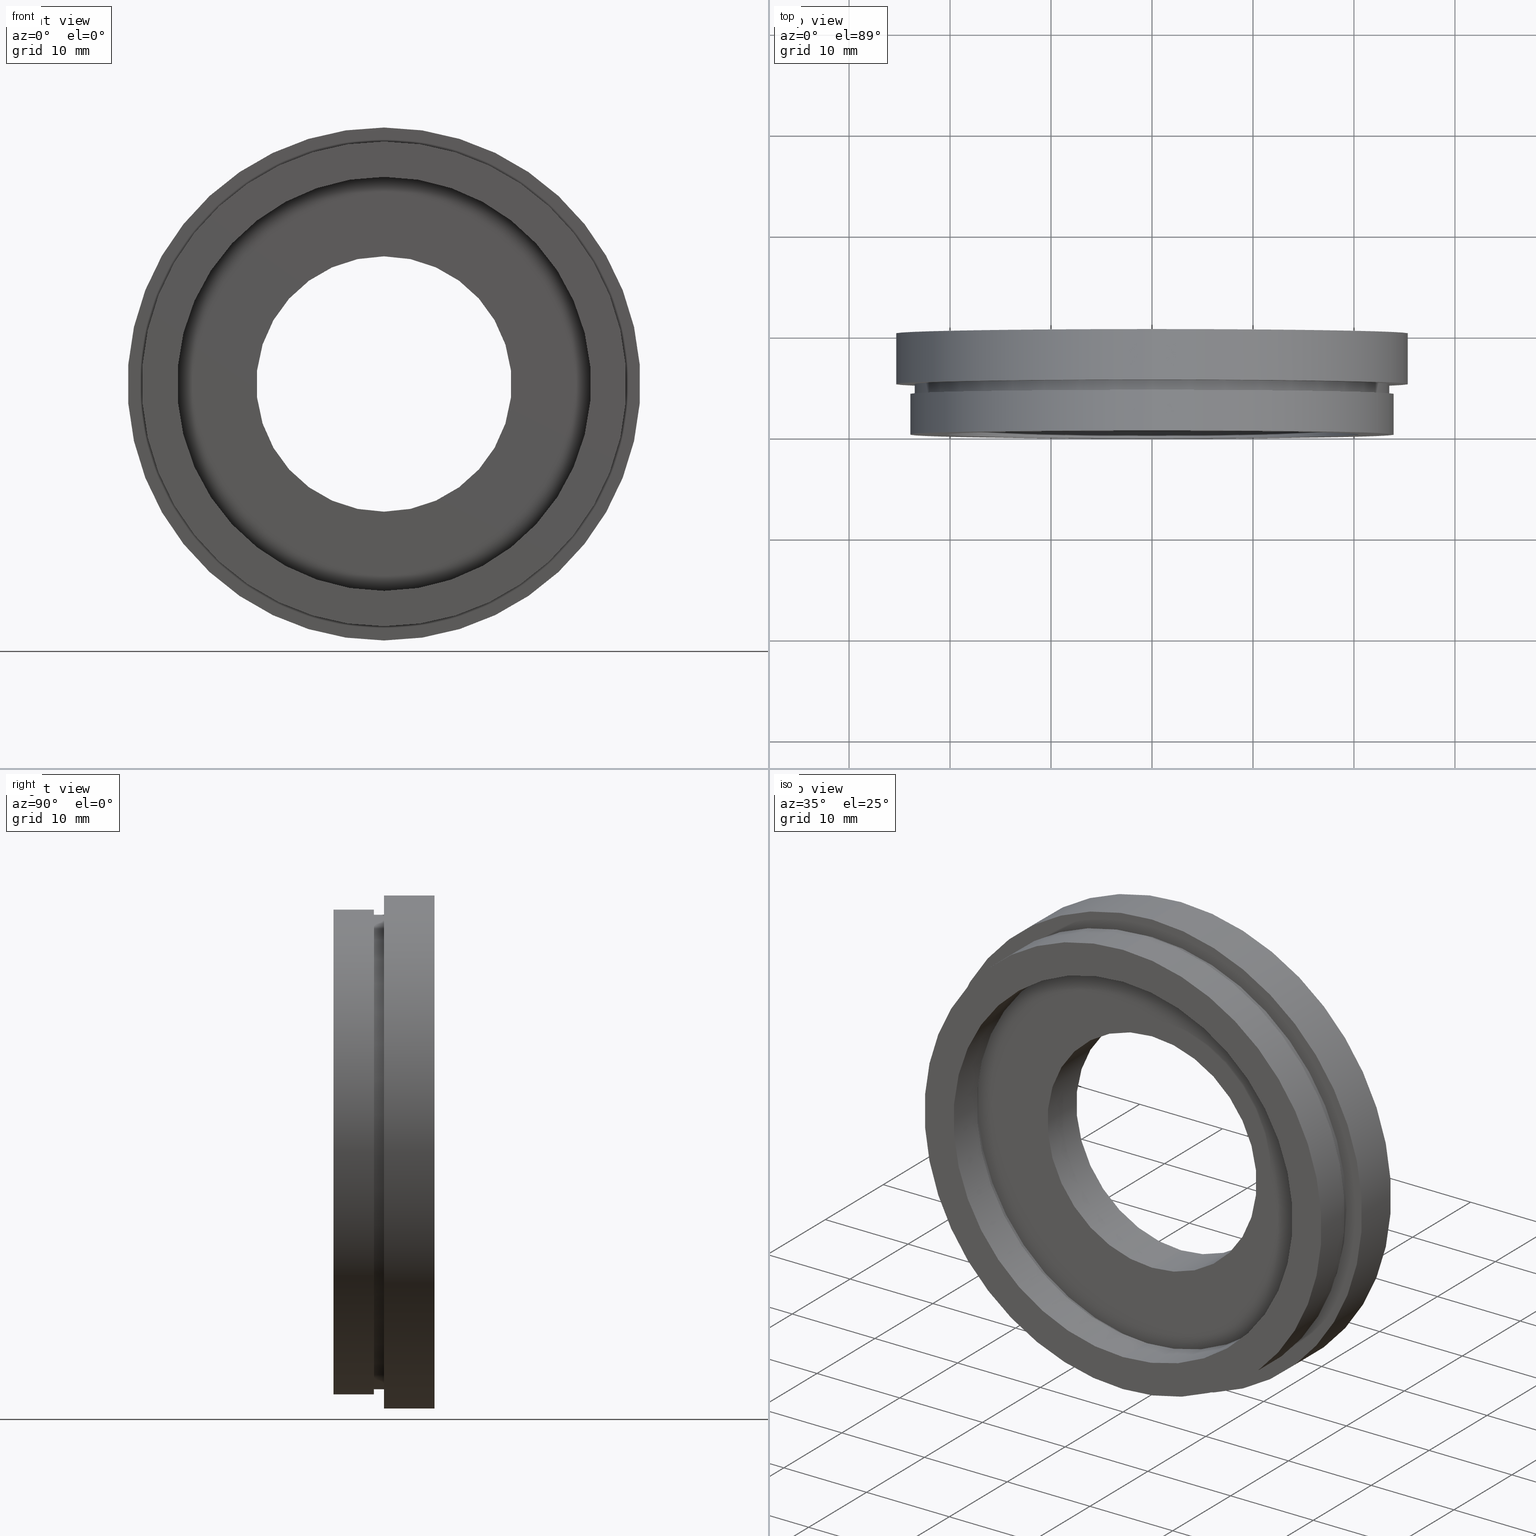
[diagram: canonical four-view strip — front | top / right | iso, engineering-drawing reading convention]
A machine part, canonical four-view strip (front | top / right | iso — engineering-drawing reading convention). The complete STEP part file that produces these views, byte-faithful:
ISO-10303-21;
HEADER;
FILE_DESCRIPTION (( 'STEP AP214' ),
    '1' );
FILE_NAME ('504119.STEP',
    '2019-10-10T06:32:32',
    ( 'user' ),
    ( '΢���й�' ),
    'SwSTEP 2.0',
    'SolidWorks 2016',
    '' );
FILE_SCHEMA (( 'AUTOMOTIVE_DESIGN' ));
ENDSEC;

DATA;
#1 =( NAMED_UNIT ( * ) SI_UNIT ( $, .STERADIAN. ) SOLID_ANGLE_UNIT ( ) );
#2 = CIRCLE ( 'NONE', #218, 24.00000000000000000 ) ;
#3 = EDGE_CURVE ( 'NONE', #158, #325, #220, .T. ) ;
#4 = ORIENTED_EDGE ( 'NONE', *, *, #313, .T. ) ;
#5 = CARTESIAN_POINT ( 'NONE',  ( 0.0000000000000000000, 4.000000000000000000, 0.0000000000000000000 ) ) ;
#6 = EDGE_CURVE ( 'NONE', #411, #539, #68, .T. ) ;
#7 = DIRECTION ( 'NONE',  ( -0.0000000000000000000, 1.000000000000000000, -0.0000000000000000000 ) ) ;
#8 = ADVANCED_FACE ( 'NONE', ( #485 ), #50, .F. ) ;
#9 = CARTESIAN_POINT ( 'NONE',  ( 0.0000000000000000000, 4.000000000000000000, 0.0000000000000000000 ) ) ;
#10 = CARTESIAN_POINT ( 'NONE',  ( 0.0000000000000000000, 13.74468085106383300, 0.0000000000000000000 ) ) ;
#11 = APPLICATION_CONTEXT ( 'automotive_design' ) ;
#12 = SURFACE_SIDE_STYLE ('',( #16 ) ) ;
#13 = COLOUR_RGB ( '',1.000000000000000000, 1.000000000000000000, 1.000000000000000000 ) ;
#14 = DIRECTION ( 'NONE',  ( 0.0000000000000000000, 0.0000000000000000000, 1.000000000000000000 ) ) ;
#15 = LINE ( 'NONE', #44, #384 ) ;
#16 = SURFACE_STYLE_FILL_AREA ( #23 ) ;
#17 = COLOUR_RGB ( '',1.000000000000000000, 1.000000000000000000, 1.000000000000000000 ) ;
#18 = ORIENTED_EDGE ( 'NONE', *, *, #560, .T. ) ;
#19 = SURFACE_STYLE_FILL_AREA ( #59 ) ;
#20 = DIRECTION ( 'NONE',  ( -0.0000000000000000000, 1.000000000000000000, -0.0000000000000000000 ) ) ;
#21 = DIRECTION ( 'NONE',  ( -0.0000000000000000000, 1.000000000000000000, -0.0000000000000000000 ) ) ;
#22 = PRESENTATION_STYLE_ASSIGNMENT (( #315 ) ) ;
#23 = FILL_AREA_STYLE ('',( #526 ) ) ;
#24 = PRESENTATION_LAYER_ASSIGNMENT (  '', '', ( #613 ) ) ;
#25 = FACE_OUTER_BOUND ( 'NONE', #40, .T. ) ;
#26 = DIRECTION ( 'NONE',  ( 0.0000000000000000000, -0.0000000000000000000, -1.000000000000000000 ) ) ;
#27 = EDGE_LOOP ( 'NONE', ( #552, #413 ) ) ;
#28 = STYLED_ITEM ( 'NONE', ( #608 ), #103 ) ;
#29 = DIRECTION ( 'NONE',  ( 0.0000000000000000000, 0.0000000000000000000, 1.000000000000000000 ) ) ;
#30 = FACE_BOUND ( 'NONE', #231, .T. ) ;
#31 = FACE_BOUND ( 'NONE', #542, .T. ) ;
#32 = FACE_OUTER_BOUND ( 'NONE', #367, .T. ) ;
#33 = APPLICATION_PROTOCOL_DEFINITION ( 'draft international standard', 'automotive_design', 1998, #11 ) ;
#34 = AXIS2_PLACEMENT_3D ( 'NONE', #147, #100, #524 ) ;
#35 =( NAMED_UNIT ( * ) SI_UNIT ( $, .STERADIAN. ) SOLID_ANGLE_UNIT ( ) );
#36 = VECTOR ( 'NONE', #105, 1000.000000000000000 ) ;
#37 = DIRECTION ( 'NONE',  ( 0.0000000000000000000, 0.0000000000000000000, 1.000000000000000000 ) ) ;
#38 = FACE_OUTER_BOUND ( 'NONE', #335, .T. ) ;
#39 = ORIENTED_EDGE ( 'NONE', *, *, #154, .F. ) ;
#40 = EDGE_LOOP ( 'NONE', ( #279, #221, #484, #115 ) ) ;
#41 = EDGE_CURVE ( 'NONE', #176, #297, #296, .T. ) ;
#42 = EDGE_CURVE ( 'NONE', #373, #94, #388, .T. ) ;
#43 = ORIENTED_EDGE ( 'NONE', *, *, #180, .T. ) ;
#44 = CARTESIAN_POINT ( 'NONE',  ( 2.584004746200915400E-015, 13.74468085106383300, -21.10000000000000100 ) ) ;
#45 = AXIS2_PLACEMENT_3D ( 'NONE', #569, #241, #324 ) ;
#46 = SHAPE_DEFINITION_REPRESENTATION ( #491, #499 ) ;
#47 = DIRECTION ( 'NONE',  ( -0.0000000000000000000, 1.000000000000000000, -0.0000000000000000000 ) ) ;
#48 = DIRECTION ( 'NONE',  ( -0.0000000000000000000, 1.000000000000000000, -0.0000000000000000000 ) ) ;
#49 = ORIENTED_EDGE ( 'NONE', *, *, #537, .F. ) ;
#50 = CYLINDRICAL_SURFACE ( 'NONE', #582, 20.50000000000000000 ) ;
#51 = ORIENTED_EDGE ( 'NONE', *, *, #474, .T. ) ;
#52 = DIRECTION ( 'NONE',  ( -0.0000000000000000000, 1.000000000000000000, -0.0000000000000000000 ) ) ;
#53 = CARTESIAN_POINT ( 'NONE',  ( 2.510525938252074500E-015, 13.74468085106383300, -20.50000000000000000 ) ) ;
#54 = ADVANCED_FACE ( 'NONE', ( #419 ), #338, .F. ) ;
#55 = CIRCLE ( 'NONE', #249, 12.64500000000000100 ) ;
#56 =( NAMED_UNIT ( * ) PLANE_ANGLE_UNIT ( ) SI_UNIT ( $, .RADIAN. ) );
#57 = ORIENTED_EDGE ( 'NONE', *, *, #313, .F. ) ;
#58 = ADVANCED_FACE ( 'NONE', ( #245 ), #426, .T. ) ;
#59 = FILL_AREA_STYLE ('',( #142 ) ) ;
#60 = MECHANICAL_DESIGN_GEOMETRIC_PRESENTATION_REPRESENTATION (  '', ( #613 ), #91 ) ;
#61 = DIRECTION ( 'NONE',  ( -0.0000000000000000000, 1.000000000000000000, -0.0000000000000000000 ) ) ;
#62 = EDGE_LOOP ( 'NONE', ( #81, #57 ) ) ;
#63 = DIRECTION ( 'NONE',  ( -0.0000000000000000000, 1.000000000000000000, -0.0000000000000000000 ) ) ;
#64 = AXIS2_PLACEMENT_3D ( 'NONE', #10, #490, #624 ) ;
#65 = FILL_AREA_STYLE_COLOUR ( '', #401 ) ;
#66 = ORIENTED_EDGE ( 'NONE', *, *, #210, .F. ) ;
#67 = CARTESIAN_POINT ( 'NONE',  ( 0.0000000000000000000, 10.00000000000000000, 0.0000000000000000000 ) ) ;
#68 = CIRCLE ( 'NONE', #109, 12.64500000000000100 ) ;
#69 = AXIS2_PLACEMENT_3D ( 'NONE', #385, #52, #336 ) ;
#70 = DIRECTION ( 'NONE',  ( -0.0000000000000000000, 1.000000000000000000, -0.0000000000000000000 ) ) ;
#71 = CARTESIAN_POINT ( 'NONE',  ( 0.0000000000000000000, 5.000000000000000900, 0.0000000000000000000 ) ) ;
#72 = VERTEX_POINT ( 'NONE', #219 ) ;
#73 = VERTEX_POINT ( 'NONE', #501 ) ;
#74 = APPLICATION_CONTEXT ( 'automotive_design' ) ;
#75 = ORIENTED_EDGE ( 'NONE', *, *, #78, .T. ) ;
#76 = PLANE ( 'NONE',  #83 ) ;
#77 = AXIS2_PLACEMENT_3D ( 'NONE', #242, #70, #203 ) ;
#78 = EDGE_CURVE ( 'NONE', #622, #327, #196, .T. ) ;
#79 = ADVANCED_FACE ( 'NONE', ( #148 ), #423, .F. ) ;
#80 = SURFACE_SIDE_STYLE ('',( #610 ) ) ;
#81 = ORIENTED_EDGE ( 'NONE', *, *, #563, .F. ) ;
#82 = CARTESIAN_POINT ( 'NONE',  ( 23.50000000000000000, 3.999999999999999100, 0.0000000000000000000 ) ) ;
#83 = AXIS2_PLACEMENT_3D ( 'NONE', #82, #195, #26 ) ;
#84 = DIRECTION ( 'NONE',  ( -0.0000000000000000000, 1.000000000000000000, -0.0000000000000000000 ) ) ;
#85 = VERTEX_POINT ( 'NONE', #364 ) ;
#86 =( NAMED_UNIT ( * ) SI_UNIT ( $, .STERADIAN. ) SOLID_ANGLE_UNIT ( ) );
#87 = AXIS2_PLACEMENT_3D ( 'NONE', #272, #361, #264 ) ;
#88 = PRESENTATION_STYLE_ASSIGNMENT (( #89 ) ) ;
#89 = SURFACE_STYLE_USAGE ( .BOTH. , #284 ) ;
#90 = FILL_AREA_STYLE_COLOUR ( '', #614 ) ;
#91 =( GEOMETRIC_REPRESENTATION_CONTEXT ( 3 ) GLOBAL_UNCERTAINTY_ASSIGNED_CONTEXT ( ( #609 ) ) GLOBAL_UNIT_ASSIGNED_CONTEXT ( ( #372, #240, #523 ) ) REPRESENTATION_CONTEXT ( 'NONE', 'WORKASPACE' ) );
#92 = CARTESIAN_POINT ( 'NONE',  ( 0.0000000000000000000, 13.74468085106383300, 0.0000000000000000000 ) ) ;
#93 = PRESENTATION_LAYER_ASSIGNMENT (  '', '', ( #28 ) ) ;
#94 = VERTEX_POINT ( 'NONE', #369 ) ;
#95 = CARTESIAN_POINT ( 'NONE',  ( 0.0000000000000000000, 5.000000000000000900, 0.0000000000000000000 ) ) ;
#96 = ORIENTED_EDGE ( 'NONE', *, *, #507, .F. ) ;
#97 = FILL_AREA_STYLE_COLOUR ( '', #543 ) ;
#98 = EDGE_LOOP ( 'NONE', ( #360, #463 ) ) ;
#99 = CARTESIAN_POINT ( 'NONE',  ( 0.0000000000000000000, 13.74468085106383300, 24.00000000000000000 ) ) ;
#100 = DIRECTION ( 'NONE',  ( -0.0000000000000000000, 1.000000000000000000, -0.0000000000000000000 ) ) ;
#101 = DIRECTION ( 'NONE',  ( 0.0000000000000000000, 0.0000000000000000000, 1.000000000000000000 ) ) ;
#102 = DIRECTION ( 'NONE',  ( -0.0000000000000000000, 1.000000000000000000, -0.0000000000000000000 ) ) ;
#103 = MANIFOLD_SOLID_BREP ( '��ת1', #151 ) ;
#104 = ADVANCED_FACE ( 'NONE', ( #408 ), #230, .T. ) ;
#105 = DIRECTION ( 'NONE',  ( -0.0000000000000000000, 1.000000000000000000, -0.0000000000000000000 ) ) ;
#106 = DIRECTION ( 'NONE',  ( 0.0000000000000000000, 0.0000000000000000000, 1.000000000000000000 ) ) ;
#107 = SURFACE_STYLE_USAGE ( .BOTH. , #437 ) ;
#108 = ADVANCED_FACE ( 'NONE', ( #376 ), #119, .T. ) ;
#109 = AXIS2_PLACEMENT_3D ( 'NONE', #229, #237, #206 ) ;
#110 = ADVANCED_FACE ( 'NONE', ( #312, #418 ), #146, .F. ) ;
#111 = EDGE_CURVE ( 'NONE', #572, #72, #433, .T. ) ;
#112 = CIRCLE ( 'NONE', #122, 21.10000000000000100 ) ;
#113 = DIRECTION ( 'NONE',  ( -0.0000000000000000000, 1.000000000000000000, 0.0000000000000000000 ) ) ;
#114 = ORIENTED_EDGE ( 'NONE', *, *, #472, .F. ) ;
#115 = ORIENTED_EDGE ( 'NONE', *, *, #474, .F. ) ;
#116 = DIRECTION ( 'NONE',  ( -0.0000000000000000000, 1.000000000000000000, -0.0000000000000000000 ) ) ;
#117 = CARTESIAN_POINT ( 'NONE',  ( 21.10000000000000100, 5.000000000000000000, 0.0000000000000000000 ) ) ;
#118 = CIRCLE ( 'NONE', #541, 23.50000000000000000 ) ;
#119 = CYLINDRICAL_SURFACE ( 'NONE', #288, 23.50000000000000000 ) ;
#120 = FILL_AREA_STYLE ('',( #564 ) ) ;
#121 = DIRECTION ( 'NONE',  ( 0.0000000000000000000, 0.0000000000000000000, 1.000000000000000000 ) ) ;
#122 = AXIS2_PLACEMENT_3D ( 'NONE', #71, #21, #310 ) ;
#123 = SURFACE_SIDE_STYLE ('',( #529 ) ) ;
#124 = ORIENTED_EDGE ( 'NONE', *, *, #504, .T. ) ;
#125 = PRESENTATION_LAYER_ASSIGNMENT (  '', '', ( #160 ) ) ;
#126 = LINE ( 'NONE', #308, #273 ) ;
#127 = MECHANICAL_DESIGN_GEOMETRIC_PRESENTATION_REPRESENTATION (  '', ( #28 ), #162 ) ;
#128 = DIRECTION ( 'NONE',  ( 0.0000000000000000000, 0.0000000000000000000, 1.000000000000000000 ) ) ;
#129 = EDGE_LOOP ( 'NONE', ( #75, #328, #49, #457 ) ) ;
#130 =( NAMED_UNIT ( * ) PLANE_ANGLE_UNIT ( ) SI_UNIT ( $, .RADIAN. ) );
#131 = LINE ( 'NONE', #515, #265 ) ;
#132 = PRODUCT_CONTEXT ( 'NONE', #74, 'mechanical' ) ;
#133 = ORIENTED_EDGE ( 'NONE', *, *, #6, .T. ) ;
#134 =( GEOMETRIC_REPRESENTATION_CONTEXT ( 3 ) GLOBAL_UNCERTAINTY_ASSIGNED_CONTEXT ( ( #255 ) ) GLOBAL_UNIT_ASSIGNED_CONTEXT ( ( #152, #130, #86 ) ) REPRESENTATION_CONTEXT ( 'NONE', 'WORKASPACE' ) );
#135 = ORIENTED_EDGE ( 'NONE', *, *, #144, .F. ) ;
#136 = PRESENTATION_STYLE_ASSIGNMENT (( #571 ) ) ;
#137 = ORIENTED_EDGE ( 'NONE', *, *, #536, .F. ) ;
#138 = ORIENTED_EDGE ( 'NONE', *, *, #251, .F. ) ;
#139 = CIRCLE ( 'NONE', #353, 25.39999999999999900 ) ;
#140 = FACE_OUTER_BOUND ( 'NONE', #544, .T. ) ;
#141 = UNCERTAINTY_MEASURE_WITH_UNIT (LENGTH_MEASURE( 1.000000000000000100E-005 ), #270, 'distance_accuracy_value', 'NONE');
#142 = FILL_AREA_STYLE_COLOUR ( '', #235 ) ;
#143 = STYLED_ITEM ( 'NONE', ( #136 ), #8 ) ;
#144 = EDGE_CURVE ( 'NONE', #94, #373, #139, .T. ) ;
#145 = DIRECTION ( 'NONE',  ( -0.0000000000000000000, 1.000000000000000000, -0.0000000000000000000 ) ) ;
#146 = PLANE ( 'NONE',  #320 ) ;
#147 = CARTESIAN_POINT ( 'NONE',  ( 0.0000000000000000000, 13.74468085106383300, 0.0000000000000000000 ) ) ;
#148 = FACE_OUTER_BOUND ( 'NONE', #185, .T. ) ;
#149 = DIRECTION ( 'NONE',  ( 0.0000000000000000000, 0.0000000000000000000, 1.000000000000000000 ) ) ;
#150 = ORIENTED_EDGE ( 'NONE', *, *, #534, .T. ) ;
#151 = CLOSED_SHELL ( 'NONE', ( #511, #584, #254, #54, #79, #8, #182, #110, #532, #439, #161, #303, #104, #300, #108, #259, #58, #489 ) ) ;
#152 =( LENGTH_UNIT ( ) NAMED_UNIT ( * ) SI_UNIT ( .MILLI., .METRE. ) );
#153 = AXIS2_PLACEMENT_3D ( 'NONE', #216, #598, #596 ) ;
#154 = EDGE_CURVE ( 'NONE', #85, #466, #559, .T. ) ;
#155 =( NAMED_UNIT ( * ) PLANE_ANGLE_UNIT ( ) SI_UNIT ( $, .RADIAN. ) );
#156 = CIRCLE ( 'NONE', #69, 21.10000000000000100 ) ;
#157 = FILL_AREA_STYLE ('',( #65 ) ) ;
#158 = VERTEX_POINT ( 'NONE', #280 ) ;
#159 = VERTEX_POINT ( 'NONE', #412 ) ;
#160 = STYLED_ITEM ( 'NONE', ( #88 ), #58 ) ;
#161 = ADVANCED_FACE ( 'NONE', ( #356 ), #444, .F. ) ;
#162 =( GEOMETRIC_REPRESENTATION_CONTEXT ( 3 ) GLOBAL_UNCERTAINTY_ASSIGNED_CONTEXT ( ( #213 ) ) GLOBAL_UNIT_ASSIGNED_CONTEXT ( ( #513, #570, #557 ) ) REPRESENTATION_CONTEXT ( 'NONE', 'WORKASPACE' ) );
#163 = DIRECTION ( 'NONE',  ( 0.0000000000000000000, 0.0000000000000000000, 1.000000000000000000 ) ) ;
#164 =( NAMED_UNIT ( * ) PLANE_ANGLE_UNIT ( ) SI_UNIT ( $, .RADIAN. ) );
#165 = CIRCLE ( 'NONE', #374, 20.50000000000000000 ) ;
#166 = DIRECTION ( 'NONE',  ( 0.0000000000000000000, 0.0000000000000000000, 1.000000000000000000 ) ) ;
#167 = ORIENTED_EDGE ( 'NONE', *, *, #409, .T. ) ;
#168 = UNCERTAINTY_MEASURE_WITH_UNIT (LENGTH_MEASURE( 1.000000000000000100E-005 ), #371, 'distance_accuracy_value', 'NONE');
#169 = ORIENTED_EDGE ( 'NONE', *, *, #563, .T. ) ;
#170 = CARTESIAN_POINT ( 'NONE',  ( 0.0000000000000000000, 4.999999999999999100, 12.64500000000000100 ) ) ;
#171 = AXIS2_PLACEMENT_3D ( 'NONE', #617, #576, #149 ) ;
#172 = ORIENTED_EDGE ( 'NONE', *, *, #536, .T. ) ;
#173 = DIRECTION ( 'NONE',  ( 0.0000000000000000000, 0.0000000000000000000, 1.000000000000000000 ) ) ;
#174 = CARTESIAN_POINT ( 'NONE',  ( 0.0000000000000000000, 4.000000000000000000, 0.0000000000000000000 ) ) ;
#175 =( LENGTH_UNIT ( ) NAMED_UNIT ( * ) SI_UNIT ( .MILLI., .METRE. ) );
#176 = VERTEX_POINT ( 'NONE', #508 ) ;
#177 = DIRECTION ( 'NONE',  ( -0.0000000000000000000, 1.000000000000000000, -0.0000000000000000000 ) ) ;
#178 = CARTESIAN_POINT ( 'NONE',  ( 0.0000000000000000000, 9.999999999999998200, 0.0000000000000000000 ) ) ;
#179 = PRESENTATION_LAYER_ASSIGNMENT (  '', '', ( #143 ) ) ;
#180 = EDGE_CURVE ( 'NONE', #73, #420, #244, .T. ) ;
#181 =( NAMED_UNIT ( * ) SI_UNIT ( $, .STERADIAN. ) SOLID_ANGLE_UNIT ( ) );
#182 = ADVANCED_FACE ( 'NONE', ( #551 ), #476, .F. ) ;
#183 = DIRECTION ( 'NONE',  ( 0.0000000000000000000, 0.0000000000000000000, 1.000000000000000000 ) ) ;
#184 = CARTESIAN_POINT ( 'NONE',  ( 20.50000000000000000, 4.000000000000000000, 0.0000000000000000000 ) ) ;
#185 = EDGE_LOOP ( 'NONE', ( #39, #366, #4, #386 ) ) ;
#186 = SURFACE_SIDE_STYLE ('',( #399 ) ) ;
#187 = VERTEX_POINT ( 'NONE', #522 ) ;
#188 = DIRECTION ( 'NONE',  ( 1.000000000000000000, 0.0000000000000000000, 0.0000000000000000000 ) ) ;
#189 = AXIS2_PLACEMENT_3D ( 'NONE', #174, #451, #121 ) ;
#190 = EDGE_CURVE ( 'NONE', #327, #621, #131, .T. ) ;
#191 = ORIENTED_EDGE ( 'NONE', *, *, #473, .T. ) ;
#192 = SURFACE_STYLE_USAGE ( .BOTH. , #453 ) ;
#193 = EDGE_LOOP ( 'NONE', ( #603, #470, #150, #486 ) ) ;
#194 = AXIS2_PLACEMENT_3D ( 'NONE', #198, #580, #333 ) ;
#195 = DIRECTION ( 'NONE',  ( 0.0000000000000000000, -1.000000000000000000, 0.0000000000000000000 ) ) ;
#196 = CIRCLE ( 'NONE', #317, 23.50000000000000000 ) ;
#197 = ORIENTED_EDGE ( 'NONE', *, *, #436, .T. ) ;
#198 = CARTESIAN_POINT ( 'NONE',  ( 0.0000000000000000000, 13.74468085106383300, 0.0000000000000000000 ) ) ;
#199 = DIRECTION ( 'NONE',  ( -0.0000000000000000000, 1.000000000000000000, -0.0000000000000000000 ) ) ;
#200 = STYLED_ITEM ( 'NONE', ( #22 ), #499 ) ;
#201 = DIRECTION ( 'NONE',  ( -0.0000000000000000000, 1.000000000000000000, -0.0000000000000000000 ) ) ;
#202 = CARTESIAN_POINT ( 'NONE',  ( 1.548565877521828400E-015, 4.999999999999999100, -12.64500000000000100 ) ) ;
#203 = DIRECTION ( 'NONE',  ( 0.0000000000000000000, 0.0000000000000000000, 1.000000000000000000 ) ) ;
#204 = CARTESIAN_POINT ( 'NONE',  ( 0.0000000000000000000, 10.00000000000000000, 12.64500000000000100 ) ) ;
#205 = ORIENTED_EDGE ( 'NONE', *, *, #504, .F. ) ;
#206 = DIRECTION ( 'NONE',  ( 0.0000000000000000000, 0.0000000000000000000, 1.000000000000000000 ) ) ;
#207 = DIRECTION ( 'NONE',  ( 0.0000000000000000000, 0.0000000000000000000, 1.000000000000000000 ) ) ;
#208 = MECHANICAL_DESIGN_GEOMETRIC_PRESENTATION_REPRESENTATION (  '', ( #143 ), #239 ) ;
#209 = CARTESIAN_POINT ( 'NONE',  ( 0.0000000000000000000, 13.74468085106383300, 0.0000000000000000000 ) ) ;
#210 = EDGE_CURVE ( 'NONE', #621, #512, #118, .T. ) ;
#211 = ORIENTED_EDGE ( 'NONE', *, *, #534, .F. ) ;
#212 = CARTESIAN_POINT ( 'NONE',  ( 0.0000000000000000000, 0.0000000000000000000, 0.0000000000000000000 ) ) ;
#213 = UNCERTAINTY_MEASURE_WITH_UNIT (LENGTH_MEASURE( 1.000000000000000100E-005 ), #513, 'distance_accuracy_value', 'NONE');
#214 = ORIENTED_EDGE ( 'NONE', *, *, #599, .T. ) ;
#215 = CARTESIAN_POINT ( 'NONE',  ( 0.0000000000000000000, 0.0000000000000000000, 0.0000000000000000000 ) ) ;
#216 = CARTESIAN_POINT ( 'NONE',  ( 12.64500000000000100, 9.999999999999998200, 0.0000000000000000000 ) ) ;
#217 = CARTESIAN_POINT ( 'NONE',  ( 0.0000000000000000000, 9.999999999999998200, 25.39999999999999900 ) ) ;
#218 = AXIS2_PLACEMENT_3D ( 'NONE', #215, #496, #166 ) ;
#219 = CARTESIAN_POINT ( 'NONE',  ( 1.548565877521828400E-015, 10.00000000000000000, -12.64500000000000100 ) ) ;
#220 = CIRCLE ( 'NONE', #77, 20.50000000000000000 ) ;
#221 = ORIENTED_EDGE ( 'NONE', *, *, #597, .T. ) ;
#222 = EDGE_CURVE ( 'NONE', #85, #345, #15, .T. ) ;
#223 = ORIENTED_EDGE ( 'NONE', *, *, #600, .F. ) ;
#224 = CARTESIAN_POINT ( 'NONE',  ( 0.0000000000000000000, 13.74468085106383300, 23.50000000000000000 ) ) ;
#225 = SURFACE_STYLE_USAGE ( .BOTH. , #246 ) ;
#226 = DIRECTION ( 'NONE',  ( -0.0000000000000000000, 1.000000000000000000, -0.0000000000000000000 ) ) ;
#227 = MECHANICAL_DESIGN_GEOMETRIC_PRESENTATION_REPRESENTATION (  '', ( #160 ), #256 ) ;
#228 = AXIS2_PLACEMENT_3D ( 'NONE', #481, #84, #14 ) ;
#229 = CARTESIAN_POINT ( 'NONE',  ( 0.0000000000000000000, 4.999999999999999100, 0.0000000000000000000 ) ) ;
#230 = CYLINDRICAL_SURFACE ( 'NONE', #261, 25.39999999999999900 ) ;
#231 = EDGE_LOOP ( 'NONE', ( #581, #302 ) ) ;
#232 = DIRECTION ( 'NONE',  ( 0.0000000000000000000, 0.0000000000000000000, 1.000000000000000000 ) ) ;
#233 = PRESENTATION_LAYER_ASSIGNMENT (  '', '', ( #200 ) ) ;
#234 =( NAMED_UNIT ( * ) SI_UNIT ( $, .STERADIAN. ) SOLID_ANGLE_UNIT ( ) );
#235 = COLOUR_RGB ( '',1.000000000000000000, 1.000000000000000000, 1.000000000000000000 ) ;
#236 = DIRECTION ( 'NONE',  ( 0.0000000000000000000, 0.0000000000000000000, 1.000000000000000000 ) ) ;
#237 = DIRECTION ( 'NONE',  ( -0.0000000000000000000, 1.000000000000000000, -0.0000000000000000000 ) ) ;
#238 = LINE ( 'NONE', #500, #615 ) ;
#239 =( GEOMETRIC_REPRESENTATION_CONTEXT ( 3 ) GLOBAL_UNCERTAINTY_ASSIGNED_CONTEXT ( ( #383 ) ) GLOBAL_UNIT_ASSIGNED_CONTEXT ( ( #175, #155, #553 ) ) REPRESENTATION_CONTEXT ( 'NONE', 'WORKASPACE' ) );
#240 =( NAMED_UNIT ( * ) PLANE_ANGLE_UNIT ( ) SI_UNIT ( $, .RADIAN. ) );
#241 = DIRECTION ( 'NONE',  ( -0.0000000000000000000, 1.000000000000000000, -0.0000000000000000000 ) ) ;
#242 = CARTESIAN_POINT ( 'NONE',  ( 0.0000000000000000000, 0.0000000000000000000, 0.0000000000000000000 ) ) ;
#243 =( NAMED_UNIT ( * ) PLANE_ANGLE_UNIT ( ) SI_UNIT ( $, .RADIAN. ) );
#244 = CIRCLE ( 'NONE', #350, 25.39999999999999900 ) ;
#245 = FACE_OUTER_BOUND ( 'NONE', #623, .T. ) ;
#246 = SURFACE_SIDE_STYLE ('',( #578 ) ) ;
#247 = PRESENTATION_STYLE_ASSIGNMENT (( #192 ) ) ;
#248 = ORIENTED_EDGE ( 'NONE', *, *, #41, .F. ) ;
#249 = AXIS2_PLACEMENT_3D ( 'NONE', #67, #355, #305 ) ;
#250 = ORIENTED_EDGE ( 'NONE', *, *, #473, .F. ) ;
#251 = EDGE_CURVE ( 'NONE', #414, #187, #321, .T. ) ;
#252 = DIRECTION ( 'NONE',  ( 0.0000000000000000000, 0.0000000000000000000, 1.000000000000000000 ) ) ;
#253 = CARTESIAN_POINT ( 'NONE',  ( 0.0000000000000000000, 4.000000000000000000, 0.0000000000000000000 ) ) ;
#254 = ADVANCED_FACE ( 'NONE', ( #25 ), #460, .T. ) ;
#255 = UNCERTAINTY_MEASURE_WITH_UNIT (LENGTH_MEASURE( 1.000000000000000100E-005 ), #152, 'distance_accuracy_value', 'NONE');
#256 =( GEOMETRIC_REPRESENTATION_CONTEXT ( 3 ) GLOBAL_UNCERTAINTY_ASSIGNED_CONTEXT ( ( #525 ) ) GLOBAL_UNIT_ASSIGNED_CONTEXT ( ( #290, #164, #234 ) ) REPRESENTATION_CONTEXT ( 'NONE', 'WORKASPACE' ) );
#257 = FACE_OUTER_BOUND ( 'NONE', #62, .T. ) ;
#258 = CARTESIAN_POINT ( 'NONE',  ( 0.0000000000000000000, 4.999999999999999100, 0.0000000000000000000 ) ) ;
#259 = ADVANCED_FACE ( 'NONE', ( #30, #602 ), #76, .F. ) ;
#260 =( NAMED_UNIT ( * ) SI_UNIT ( $, .STERADIAN. ) SOLID_ANGLE_UNIT ( ) );
#261 = AXIS2_PLACEMENT_3D ( 'NONE', #483, #398, #392 ) ;
#262 = DIRECTION ( 'NONE',  ( 0.0000000000000000000, 0.0000000000000000000, 1.000000000000000000 ) ) ;
#263 = DIRECTION ( 'NONE',  ( -0.0000000000000000000, 1.000000000000000000, -0.0000000000000000000 ) ) ;
#264 = DIRECTION ( 'NONE',  ( 0.0000000000000000000, 0.0000000000000000000, 1.000000000000000000 ) ) ;
#265 = VECTOR ( 'NONE', #331, 1000.000000000000000 ) ;
#266 = CYLINDRICAL_SURFACE ( 'NONE', #618, 24.00000000000000000 ) ;
#267 = ORIENTED_EDGE ( 'NONE', *, *, #562, .F. ) ;
#268 = MECHANICAL_DESIGN_GEOMETRIC_PRESENTATION_REPRESENTATION (  '', ( #200 ), #275 ) ;
#269 = CARTESIAN_POINT ( 'NONE',  ( 2.877919977996280300E-015, 4.000000000000000000, -23.50000000000000000 ) ) ;
#270 =( LENGTH_UNIT ( ) NAMED_UNIT ( * ) SI_UNIT ( .MILLI., .METRE. ) );
#271 = CIRCLE ( 'NONE', #503, 24.00000000000000000 ) ;
#272 = CARTESIAN_POINT ( 'NONE',  ( 25.39999999999999900, 5.000000000000000900, 0.0000000000000000000 ) ) ;
#273 = VECTOR ( 'NONE', #546, 1000.000000000000000 ) ;
#274 = DIRECTION ( 'NONE',  ( 0.0000000000000000000, 0.0000000000000000000, 1.000000000000000000 ) ) ;
#275 =( GEOMETRIC_REPRESENTATION_CONTEXT ( 3 ) GLOBAL_UNCERTAINTY_ASSIGNED_CONTEXT ( ( #141 ) ) GLOBAL_UNIT_ASSIGNED_CONTEXT ( ( #270, #243, #181 ) ) REPRESENTATION_CONTEXT ( 'NONE', 'WORKASPACE' ) );
#276 = PRESENTATION_STYLE_ASSIGNMENT (( #107 ) ) ;
#277 = ORIENTED_EDGE ( 'NONE', *, *, #190, .F. ) ;
#278 = CARTESIAN_POINT ( 'NONE',  ( 0.0000000000000000000, 5.000000000000000900, 0.0000000000000000000 ) ) ;
#279 = ORIENTED_EDGE ( 'NONE', *, *, #562, .T. ) ;
#280 = CARTESIAN_POINT ( 'NONE',  ( 0.0000000000000000000, 0.0000000000000000000, 20.50000000000000000 ) ) ;
#281 = EDGE_CURVE ( 'NONE', #327, #622, #283, .T. ) ;
#282 = LINE ( 'NONE', #332, #506 ) ;
#283 = CIRCLE ( 'NONE', #604, 23.50000000000000000 ) ;
#284 = SURFACE_SIDE_STYLE ('',( #619 ) ) ;
#285 = EDGE_LOOP ( 'NONE', ( #316, #391 ) ) ;
#286 =( GEOMETRIC_REPRESENTATION_CONTEXT ( 3 ) GLOBAL_UNCERTAINTY_ASSIGNED_CONTEXT ( ( #590 ) ) GLOBAL_UNIT_ASSIGNED_CONTEXT ( ( #304, #352, #260 ) ) REPRESENTATION_CONTEXT ( 'NONE', 'WORKASPACE' ) );
#287 = ORIENTED_EDGE ( 'NONE', *, *, #375, .T. ) ;
#288 = AXIS2_PLACEMENT_3D ( 'NONE', #309, #405, #448 ) ;
#289 = CARTESIAN_POINT ( 'NONE',  ( 0.0000000000000000000, 5.000000000000000900, 23.50000000000000000 ) ) ;
#290 =( LENGTH_UNIT ( ) NAMED_UNIT ( * ) SI_UNIT ( .MILLI., .METRE. ) );
#291 = PRODUCT_DEFINITION_CONTEXT ( 'detailed design', #11, 'design' ) ;
#292 = LINE ( 'NONE', #432, #36 ) ;
#293 = PRESENTATION_STYLE_ASSIGNMENT (( #585 ) ) ;
#294 = CARTESIAN_POINT ( 'NONE',  ( 3.110602869834276900E-015, 13.74468085106383300, -25.39999999999999900 ) ) ;
#295 = ORIENTED_EDGE ( 'NONE', *, *, #111, .F. ) ;
#296 = CIRCLE ( 'NONE', #547, 20.50000000000000000 ) ;
#297 = VERTEX_POINT ( 'NONE', #548 ) ;
#298 = CARTESIAN_POINT ( 'NONE',  ( 2.877919977996280300E-015, 5.000000000000000900, -23.50000000000000000 ) ) ;
#299 = CIRCLE ( 'NONE', #591, 25.39999999999999900 ) ;
#300 = ADVANCED_FACE ( 'NONE', ( #140, #527 ), #362, .F. ) ;
#301 = CARTESIAN_POINT ( 'NONE',  ( 0.0000000000000000000, 4.000000000000000000, 21.10000000000000100 ) ) ;
#302 = ORIENTED_EDGE ( 'NONE', *, *, #281, .F. ) ;
#303 = ADVANCED_FACE ( 'NONE', ( #31, #348 ), #314, .F. ) ;
#304 =( LENGTH_UNIT ( ) NAMED_UNIT ( * ) SI_UNIT ( .MILLI., .METRE. ) );
#305 = DIRECTION ( 'NONE',  ( 0.0000000000000000000, 0.0000000000000000000, 1.000000000000000000 ) ) ;
#306 = PLANE ( 'NONE',  #341 ) ;
#307 = EDGE_LOOP ( 'NONE', ( #205, #167, #390, #211 ) ) ;
#308 = CARTESIAN_POINT ( 'NONE',  ( 1.548565877521828400E-015, 13.74468085106383300, -12.64500000000000100 ) ) ;
#309 = CARTESIAN_POINT ( 'NONE',  ( 0.0000000000000000000, 13.74468085106383300, 0.0000000000000000000 ) ) ;
#310 = DIRECTION ( 'NONE',  ( 0.0000000000000000000, 0.0000000000000000000, 1.000000000000000000 ) ) ;
#311 = AXIS2_PLACEMENT_3D ( 'NONE', #212, #494, #163 ) ;
#312 = FACE_BOUND ( 'NONE', #424, .T. ) ;
#313 = EDGE_CURVE ( 'NONE', #345, #478, #112, .T. ) ;
#314 = PLANE ( 'NONE',  #153 ) ;
#315 = SURFACE_STYLE_USAGE ( .BOTH. , #12 ) ;
#316 = ORIENTED_EDGE ( 'NONE', *, *, #3, .T. ) ;
#317 = AXIS2_PLACEMENT_3D ( 'NONE', #428, #63, #106 ) ;
#318 = CARTESIAN_POINT ( 'NONE',  ( 0.0000000000000000000, 4.000000000000000000, 23.50000000000000000 ) ) ;
#319 = STYLED_ITEM ( 'NONE', ( #607 ), #182 ) ;
#320 = AXIS2_PLACEMENT_3D ( 'NONE', #184, #351, #382 ) ;
#321 = CIRCLE ( 'NONE', #514, 24.00000000000000000 ) ;
#322 = UNCERTAINTY_MEASURE_WITH_UNIT (LENGTH_MEASURE( 1.000000000000000100E-005 ), #393, 'distance_accuracy_value', 'NONE');
#323 = APPLICATION_PROTOCOL_DEFINITION ( 'draft international standard', 'automotive_design', 1998, #74 ) ;
#324 = DIRECTION ( 'NONE',  ( 0.0000000000000000000, 0.0000000000000000000, 1.000000000000000000 ) ) ;
#325 = VERTEX_POINT ( 'NONE', #502 ) ;
#326 = DIRECTION ( 'NONE',  ( -0.0000000000000000000, 1.000000000000000000, -0.0000000000000000000 ) ) ;
#327 = VERTEX_POINT ( 'NONE', #269 ) ;
#328 = ORIENTED_EDGE ( 'NONE', *, *, #190, .T. ) ;
#329 = ORIENTED_EDGE ( 'NONE', *, *, #436, .F. ) ;
#330 = FACE_OUTER_BOUND ( 'NONE', #561, .T. ) ;
#331 = DIRECTION ( 'NONE',  ( -0.0000000000000000000, 1.000000000000000000, -0.0000000000000000000 ) ) ;
#332 = CARTESIAN_POINT ( 'NONE',  ( 2.939152317953647900E-015, 13.74468085106383300, -24.00000000000000000 ) ) ;
#333 = DIRECTION ( 'NONE',  ( 0.0000000000000000000, 0.0000000000000000000, 1.000000000000000000 ) ) ;
#334 = ORIENTED_EDGE ( 'NONE', *, *, #600, .T. ) ;
#335 = EDGE_LOOP ( 'NONE', ( #612, #387, #589, #169 ) ) ;
#336 = DIRECTION ( 'NONE',  ( 0.0000000000000000000, 0.0000000000000000000, 1.000000000000000000 ) ) ;
#337 = LINE ( 'NONE', #99, #558 ) ;
#338 = CYLINDRICAL_SURFACE ( 'NONE', #194, 12.64500000000000100 ) ;
#339 = VECTOR ( 'NONE', #340, 1000.000000000000000 ) ;
#340 = DIRECTION ( 'NONE',  ( -0.0000000000000000000, 1.000000000000000000, -0.0000000000000000000 ) ) ;
#341 = AXIS2_PLACEMENT_3D ( 'NONE', #117, #579, #343 ) ;
#342 = EDGE_CURVE ( 'NONE', #187, #414, #349, .T. ) ;
#343 = DIRECTION ( 'NONE',  ( 0.0000000000000000000, 0.0000000000000000000, 1.000000000000000000 ) ) ;
#344 = ORIENTED_EDGE ( 'NONE', *, *, #438, .F. ) ;
#345 = VERTEX_POINT ( 'NONE', #595 ) ;
#346 = DIRECTION ( 'NONE',  ( 0.0000000000000000000, 0.0000000000000000000, 1.000000000000000000 ) ) ;
#347 = AXIS2_PLACEMENT_3D ( 'NONE', #209, #48, #236 ) ;
#348 = FACE_OUTER_BOUND ( 'NONE', #98, .T. ) ;
#349 = CIRCLE ( 'NONE', #189, 24.00000000000000000 ) ;
#350 = AXIS2_PLACEMENT_3D ( 'NONE', #278, #556, #232 ) ;
#351 = DIRECTION ( 'NONE',  ( 0.0000000000000000000, -1.000000000000000000, 0.0000000000000000000 ) ) ;
#352 =( NAMED_UNIT ( * ) PLANE_ANGLE_UNIT ( ) SI_UNIT ( $, .RADIAN. ) );
#353 = AXIS2_PLACEMENT_3D ( 'NONE', #178, #226, #128 ) ;
#354 = VERTEX_POINT ( 'NONE', #452 ) ;
#355 = DIRECTION ( 'NONE',  ( -0.0000000000000000000, 1.000000000000000000, -0.0000000000000000000 ) ) ;
#356 = FACE_OUTER_BOUND ( 'NONE', #193, .T. ) ;
#357 = EDGE_LOOP ( 'NONE', ( #447, #378 ) ) ;
#358 = EDGE_LOOP ( 'NONE', ( #545, #43, #51, #135 ) ) ;
#359 = ORIENTED_EDGE ( 'NONE', *, *, #599, .F. ) ;
#360 = ORIENTED_EDGE ( 'NONE', *, *, #42, .T. ) ;
#361 = DIRECTION ( 'NONE',  ( -0.0000000000000000000, 1.000000000000000000, 0.0000000000000000000 ) ) ;
#362 = PLANE ( 'NONE',  #87 ) ;
#363 = VECTOR ( 'NONE', #531, 1000.000000000000000 ) ;
#364 = CARTESIAN_POINT ( 'NONE',  ( 2.584004746200915400E-015, 4.000000000000000000, -21.10000000000000100 ) ) ;
#365 = CIRCLE ( 'NONE', #311, 20.50000000000000000 ) ;
#366 = ORIENTED_EDGE ( 'NONE', *, *, #222, .T. ) ;
#367 = EDGE_LOOP ( 'NONE', ( #549, #334, #138, #359 ) ) ;
#368 = AXIS2_PLACEMENT_3D ( 'NONE', #616, #480, #188 ) ;
#369 = CARTESIAN_POINT ( 'NONE',  ( 3.110602869834276900E-015, 9.999999999999998200, -25.39999999999999900 ) ) ;
#370 = FACE_BOUND ( 'NONE', #285, .T. ) ;
#371 =( LENGTH_UNIT ( ) NAMED_UNIT ( * ) SI_UNIT ( .MILLI., .METRE. ) );
#372 =( LENGTH_UNIT ( ) NAMED_UNIT ( * ) SI_UNIT ( .MILLI., .METRE. ) );
#373 = VERTEX_POINT ( 'NONE', #217 ) ;
#374 = AXIS2_PLACEMENT_3D ( 'NONE', #9, #587, #262 ) ;
#375 = EDGE_CURVE ( 'NONE', #622, #512, #377, .T. ) ;
#376 = FACE_OUTER_BOUND ( 'NONE', #573, .T. ) ;
#377 = LINE ( 'NONE', #224, #510 ) ;
#378 = ORIENTED_EDGE ( 'NONE', *, *, #342, .T. ) ;
#379 = DIRECTION ( 'NONE',  ( -0.0000000000000000000, 1.000000000000000000, -0.0000000000000000000 ) ) ;
#380 = AXIS2_PLACEMENT_3D ( 'NONE', #92, #326, #183 ) ;
#381 = AXIS2_PLACEMENT_3D ( 'NONE', #550, #450, #173 ) ;
#382 = DIRECTION ( 'NONE',  ( 0.0000000000000000000, -0.0000000000000000000, -1.000000000000000000 ) ) ;
#383 = UNCERTAINTY_MEASURE_WITH_UNIT (LENGTH_MEASURE( 1.000000000000000100E-005 ), #175, 'distance_accuracy_value', 'NONE');
#384 = VECTOR ( 'NONE', #565, 1000.000000000000000 ) ;
#385 = CARTESIAN_POINT ( 'NONE',  ( 0.0000000000000000000, 5.000000000000000900, 0.0000000000000000000 ) ) ;
#386 = ORIENTED_EDGE ( 'NONE', *, *, #407, .F. ) ;
#387 = ORIENTED_EDGE ( 'NONE', *, *, #509, .F. ) ;
#388 = CIRCLE ( 'NONE', #521, 25.39999999999999900 ) ;
#389 = DIRECTION ( 'NONE',  ( 0.0000000000000000000, 0.0000000000000000000, 1.000000000000000000 ) ) ;
#390 = ORIENTED_EDGE ( 'NONE', *, *, #438, .T. ) ;
#391 = ORIENTED_EDGE ( 'NONE', *, *, #472, .T. ) ;
#392 = DIRECTION ( 'NONE',  ( 0.0000000000000000000, 0.0000000000000000000, 1.000000000000000000 ) ) ;
#393 =( LENGTH_UNIT ( ) NAMED_UNIT ( * ) SI_UNIT ( .MILLI., .METRE. ) );
#394 = CARTESIAN_POINT ( 'NONE',  ( 0.0000000000000000000, 0.0000000000000000000, 0.0000000000000000000 ) ) ;
#395 = DIRECTION ( 'NONE',  ( 0.0000000000000000000, 0.0000000000000000000, 1.000000000000000000 ) ) ;
#396 = CARTESIAN_POINT ( 'NONE',  ( 0.0000000000000000000, 13.74468085106383300, 25.39999999999999900 ) ) ;
#397 = PRODUCT_DEFINITION ( 'δ֪', '', #427, #291 ) ;
#398 = DIRECTION ( 'NONE',  ( -0.0000000000000000000, 1.000000000000000000, -0.0000000000000000000 ) ) ;
#399 = SURFACE_STYLE_FILL_AREA ( #516 ) ;
#400 = DIRECTION ( 'NONE',  ( -0.0000000000000000000, 1.000000000000000000, -0.0000000000000000000 ) ) ;
#401 = COLOUR_RGB ( '',1.000000000000000000, 1.000000000000000000, 1.000000000000000000 ) ;
#402 = VECTOR ( 'NONE', #263, 1000.000000000000000 ) ;
#403 = CARTESIAN_POINT ( 'NONE',  ( 0.0000000000000000000, 5.000000000000000900, 25.39999999999999900 ) ) ;
#404 = FILL_AREA_STYLE ('',( #458 ) ) ;
#405 = DIRECTION ( 'NONE',  ( -0.0000000000000000000, 1.000000000000000000, -0.0000000000000000000 ) ) ;
#406 = SURFACE_STYLE_FILL_AREA ( #157 ) ;
#407 = EDGE_CURVE ( 'NONE', #466, #478, #238, .T. ) ;
#408 = FACE_OUTER_BOUND ( 'NONE', #358, .T. ) ;
#409 = EDGE_CURVE ( 'NONE', #539, #72, #126, .T. ) ;
#410 = EDGE_LOOP ( 'NONE', ( #467, #461, #172, #468 ) ) ;
#411 = VERTEX_POINT ( 'NONE', #170 ) ;
#412 = CARTESIAN_POINT ( 'NONE',  ( 2.939152317953647900E-015, 0.0000000000000000000, -24.00000000000000000 ) ) ;
#413 = ORIENTED_EDGE ( 'NONE', *, *, #210, .T. ) ;
#414 = VERTEX_POINT ( 'NONE', #449 ) ;
#415 = PRESENTATION_LAYER_ASSIGNMENT (  '', '', ( #319 ) ) ;
#416 = STYLED_ITEM ( 'NONE', ( #293 ), #161 ) ;
#417 = CARTESIAN_POINT ( 'NONE',  ( 0.0000000000000000000, 4.000000000000000000, 0.0000000000000000000 ) ) ;
#418 = FACE_OUTER_BOUND ( 'NONE', #555, .T. ) ;
#419 = FACE_OUTER_BOUND ( 'NONE', #307, .T. ) ;
#420 = VERTEX_POINT ( 'NONE', #403 ) ;
#421 =( NAMED_UNIT ( * ) PLANE_ANGLE_UNIT ( ) SI_UNIT ( $, .RADIAN. ) );
#422 = LINE ( 'NONE', #396, #402 ) ;
#423 = CYLINDRICAL_SURFACE ( 'NONE', #64, 21.10000000000000100 ) ;
#424 = EDGE_LOOP ( 'NONE', ( #248, #250 ) ) ;
#425 = DIRECTION ( 'NONE',  ( 0.0000000000000000000, 0.0000000000000000000, 1.000000000000000000 ) ) ;
#426 = CYLINDRICAL_SURFACE ( 'NONE', #347, 24.00000000000000000 ) ;
#427 = PRODUCT_DEFINITION_FORMATION_WITH_SPECIFIED_SOURCE ( '�κ�', '', #487, .NOT_KNOWN. ) ;
#428 = CARTESIAN_POINT ( 'NONE',  ( 0.0000000000000000000, 4.000000000000000000, 0.0000000000000000000 ) ) ;
#429 = STYLED_ITEM ( 'NONE', ( #276 ), #511 ) ;
#430 = DIRECTION ( 'NONE',  ( -0.0000000000000000000, 1.000000000000000000, -0.0000000000000000000 ) ) ;
#431 = CARTESIAN_POINT ( 'NONE',  ( 0.0000000000000000000, 5.000000000000000900, 0.0000000000000000000 ) ) ;
#432 = CARTESIAN_POINT ( 'NONE',  ( 0.0000000000000000000, 13.74468085106383300, 12.64500000000000100 ) ) ;
#433 = CIRCLE ( 'NONE', #228, 12.64500000000000100 ) ;
#434 = AXIS2_PLACEMENT_3D ( 'NONE', #258, #538, #207 ) ;
#435 = ORIENTED_EDGE ( 'NONE', *, *, #342, .F. ) ;
#436 = EDGE_CURVE ( 'NONE', #159, #354, #2, .T. ) ;
#437 = SURFACE_SIDE_STYLE ('',( #406 ) ) ;
#438 = EDGE_CURVE ( 'NONE', #72, #572, #55, .T. ) ;
#439 = ADVANCED_FACE ( 'NONE', ( #257, #459 ), #306, .F. ) ;
#440 = EDGE_LOOP ( 'NONE', ( #133, #124 ) ) ;
#441 = CARTESIAN_POINT ( 'NONE',  ( 0.0000000000000000000, 13.74468085106383300, 20.50000000000000000 ) ) ;
#442 = MECHANICAL_DESIGN_GEOMETRIC_PRESENTATION_REPRESENTATION (  '', ( #319 ), #477 ) ;
#443 = PRESENTATION_LAYER_ASSIGNMENT (  '', '', ( #416 ) ) ;
#444 = CYLINDRICAL_SURFACE ( 'NONE', #380, 12.64500000000000100 ) ;
#445 = PLANE ( 'NONE',  #469 ) ;
#446 = CARTESIAN_POINT ( 'NONE',  ( 0.0000000000000000000, 9.999999999999998200, 0.0000000000000000000 ) ) ;
#447 = ORIENTED_EDGE ( 'NONE', *, *, #251, .T. ) ;
#448 = DIRECTION ( 'NONE',  ( 0.0000000000000000000, 0.0000000000000000000, 1.000000000000000000 ) ) ;
#449 = CARTESIAN_POINT ( 'NONE',  ( 0.0000000000000000000, 4.000000000000000000, 24.00000000000000000 ) ) ;
#450 = DIRECTION ( 'NONE',  ( -0.0000000000000000000, 1.000000000000000000, -0.0000000000000000000 ) ) ;
#451 = DIRECTION ( 'NONE',  ( -0.0000000000000000000, 1.000000000000000000, -0.0000000000000000000 ) ) ;
#452 = CARTESIAN_POINT ( 'NONE',  ( 0.0000000000000000000, 0.0000000000000000000, 24.00000000000000000 ) ) ;
#453 = SURFACE_SIDE_STYLE ('',( #19 ) ) ;
#454 = EDGE_LOOP ( 'NONE', ( #114, #18, #191, #137 ) ) ;
#455 = DIRECTION ( 'NONE',  ( 0.0000000000000000000, 0.0000000000000000000, 1.000000000000000000 ) ) ;
#456 = ORIENTED_EDGE ( 'NONE', *, *, #509, .T. ) ;
#457 = ORIENTED_EDGE ( 'NONE', *, *, #375, .F. ) ;
#458 = FILL_AREA_STYLE_COLOUR ( '', #517 ) ;
#459 = FACE_BOUND ( 'NONE', #440, .T. ) ;
#460 = CYLINDRICAL_SURFACE ( 'NONE', #45, 25.39999999999999900 ) ;
#461 = ORIENTED_EDGE ( 'NONE', *, *, #3, .F. ) ;
#462 = PRODUCT_RELATED_PRODUCT_CATEGORY ( 'part', '', ( #487 ) ) ;
#463 = ORIENTED_EDGE ( 'NONE', *, *, #144, .T. ) ;
#464 = PRESENTATION_LAYER_ASSIGNMENT (  '', '', ( #429 ) ) ;
#465 = FILL_AREA_STYLE_COLOUR ( '', #498 ) ;
#466 = VERTEX_POINT ( 'NONE', #301 ) ;
#467 = ORIENTED_EDGE ( 'NONE', *, *, #560, .F. ) ;
#468 = ORIENTED_EDGE ( 'NONE', *, *, #41, .T. ) ;
#469 = AXIS2_PLACEMENT_3D ( 'NONE', #540, #113, #395 ) ;
#470 = ORIENTED_EDGE ( 'NONE', *, *, #6, .F. ) ;
#471 = ORIENTED_EDGE ( 'NONE', *, *, #180, .F. ) ;
#472 = EDGE_CURVE ( 'NONE', #325, #158, #365, .T. ) ;
#473 = EDGE_CURVE ( 'NONE', #297, #176, #165, .T. ) ;
#474 = EDGE_CURVE ( 'NONE', #420, #373, #422, .T. ) ;
#475 = CARTESIAN_POINT ( 'NONE',  ( 0.0000000000000000000, 13.74468085106383300, 0.0000000000000000000 ) ) ;
#476 = CYLINDRICAL_SURFACE ( 'NONE', #568, 20.50000000000000000 ) ;
#477 =( GEOMETRIC_REPRESENTATION_CONTEXT ( 3 ) GLOBAL_UNCERTAINTY_ASSIGNED_CONTEXT ( ( #168 ) ) GLOBAL_UNIT_ASSIGNED_CONTEXT ( ( #371, #421, #35 ) ) REPRESENTATION_CONTEXT ( 'NONE', 'WORKASPACE' ) );
#478 = VERTEX_POINT ( 'NONE', #588 ) ;
#479 = MECHANICAL_DESIGN_GEOMETRIC_PRESENTATION_REPRESENTATION (  '', ( #416 ), #286 ) ;
#480 = DIRECTION ( 'NONE',  ( 0.0000000000000000000, 0.0000000000000000000, 1.000000000000000000 ) ) ;
#481 = CARTESIAN_POINT ( 'NONE',  ( 0.0000000000000000000, 10.00000000000000000, 0.0000000000000000000 ) ) ;
#482 = DIRECTION ( 'NONE',  ( 0.0000000000000000000, 0.0000000000000000000, 1.000000000000000000 ) ) ;
#483 = CARTESIAN_POINT ( 'NONE',  ( 0.0000000000000000000, 13.74468085106383300, 0.0000000000000000000 ) ) ;
#484 = ORIENTED_EDGE ( 'NONE', *, *, #42, .F. ) ;
#485 = FACE_OUTER_BOUND ( 'NONE', #454, .T. ) ;
#486 = ORIENTED_EDGE ( 'NONE', *, *, #111, .T. ) ;
#487 = PRODUCT ( '504119', '504119', '', ( #132 ) ) ;
#488 = DIRECTION ( 'NONE',  ( 0.0000000000000000000, 0.0000000000000000000, 1.000000000000000000 ) ) ;
#489 = ADVANCED_FACE ( 'NONE', ( #330, #370 ), #445, .F. ) ;
#490 = DIRECTION ( 'NONE',  ( -0.0000000000000000000, 1.000000000000000000, -0.0000000000000000000 ) ) ;
#491 = PRODUCT_DEFINITION_SHAPE ( 'NONE', 'NONE',  #397 ) ;
#492 = DIRECTION ( 'NONE',  ( -0.0000000000000000000, 1.000000000000000000, -0.0000000000000000000 ) ) ;
#493 = FILL_AREA_STYLE ('',( #97 ) ) ;
#494 = DIRECTION ( 'NONE',  ( -0.0000000000000000000, 1.000000000000000000, -0.0000000000000000000 ) ) ;
#495 = FILL_AREA_STYLE ('',( #90 ) ) ;
#496 = DIRECTION ( 'NONE',  ( -0.0000000000000000000, 1.000000000000000000, -0.0000000000000000000 ) ) ;
#497 = MECHANICAL_DESIGN_GEOMETRIC_PRESENTATION_REPRESENTATION (  '', ( #429 ), #528 ) ;
#498 = COLOUR_RGB ( '',1.000000000000000000, 1.000000000000000000, 1.000000000000000000 ) ;
#499 = ADVANCED_BREP_SHAPE_REPRESENTATION ( '504119', ( #103, #368 ), #134 ) ;
#500 = CARTESIAN_POINT ( 'NONE',  ( 0.0000000000000000000, 13.74468085106383300, 21.10000000000000100 ) ) ;
#501 = CARTESIAN_POINT ( 'NONE',  ( 3.110602869834276900E-015, 5.000000000000000900, -25.39999999999999900 ) ) ;
#502 = CARTESIAN_POINT ( 'NONE',  ( 2.510525938252074500E-015, 0.0000000000000000000, -20.50000000000000000 ) ) ;
#503 = AXIS2_PLACEMENT_3D ( 'NONE', #394, #61, #346 ) ;
#504 = EDGE_CURVE ( 'NONE', #539, #411, #586, .T. ) ;
#505 = CARTESIAN_POINT ( 'NONE',  ( 0.0000000000000000000, 4.000000000000000000, 0.0000000000000000000 ) ) ;
#506 = VECTOR ( 'NONE', #379, 1000.000000000000000 ) ;
#507 = EDGE_CURVE ( 'NONE', #354, #159, #271, .T. ) ;
#508 = CARTESIAN_POINT ( 'NONE',  ( 0.0000000000000000000, 4.000000000000000000, 20.50000000000000000 ) ) ;
#509 = EDGE_CURVE ( 'NONE', #466, #85, #567, .T. ) ;
#510 = VECTOR ( 'NONE', #20, 1000.000000000000000 ) ;
#511 = ADVANCED_FACE ( 'NONE', ( #32 ), #266, .T. ) ;
#512 = VERTEX_POINT ( 'NONE', #289 ) ;
#513 =( LENGTH_UNIT ( ) NAMED_UNIT ( * ) SI_UNIT ( .MILLI., .METRE. ) );
#514 = AXIS2_PLACEMENT_3D ( 'NONE', #417, #400, #29 ) ;
#515 = CARTESIAN_POINT ( 'NONE',  ( 2.877919977996280300E-015, 13.74468085106383300, -23.50000000000000000 ) ) ;
#516 = FILL_AREA_STYLE ('',( #465 ) ) ;
#517 = COLOUR_RGB ( '',1.000000000000000000, 1.000000000000000000, 1.000000000000000000 ) ;
#518 = DIRECTION ( 'NONE',  ( 0.0000000000000000000, 0.0000000000000000000, 1.000000000000000000 ) ) ;
#519 = ORIENTED_EDGE ( 'NONE', *, *, #154, .T. ) ;
#520 = LINE ( 'NONE', #441, #339 ) ;
#521 = AXIS2_PLACEMENT_3D ( 'NONE', #446, #116, #101 ) ;
#522 = CARTESIAN_POINT ( 'NONE',  ( 2.939152317953647900E-015, 4.000000000000000000, -24.00000000000000000 ) ) ;
#523 =( NAMED_UNIT ( * ) SI_UNIT ( $, .STERADIAN. ) SOLID_ANGLE_UNIT ( ) );
#524 = DIRECTION ( 'NONE',  ( 0.0000000000000000000, 0.0000000000000000000, 1.000000000000000000 ) ) ;
#525 = UNCERTAINTY_MEASURE_WITH_UNIT (LENGTH_MEASURE( 1.000000000000000100E-005 ), #290, 'distance_accuracy_value', 'NONE');
#526 = FILL_AREA_STYLE_COLOUR ( '', #13 ) ;
#527 = FACE_BOUND ( 'NONE', #27, .T. ) ;
#528 =( GEOMETRIC_REPRESENTATION_CONTEXT ( 3 ) GLOBAL_UNCERTAINTY_ASSIGNED_CONTEXT ( ( #322 ) ) GLOBAL_UNIT_ASSIGNED_CONTEXT ( ( #393, #56, #1 ) ) REPRESENTATION_CONTEXT ( 'NONE', 'WORKASPACE' ) );
#529 = SURFACE_STYLE_FILL_AREA ( #404 ) ;
#530 = CARTESIAN_POINT ( 'NONE',  ( 0.0000000000000000000, 5.000000000000000900, 0.0000000000000000000 ) ) ;
#531 = DIRECTION ( 'NONE',  ( -0.0000000000000000000, 1.000000000000000000, -0.0000000000000000000 ) ) ;
#532 = ADVANCED_FACE ( 'NONE', ( #38 ), #594, .F. ) ;
#533 = AXIS2_PLACEMENT_3D ( 'NONE', #253, #535, #488 ) ;
#534 = EDGE_CURVE ( 'NONE', #411, #572, #292, .T. ) ;
#535 = DIRECTION ( 'NONE',  ( -0.0000000000000000000, 1.000000000000000000, -0.0000000000000000000 ) ) ;
#536 = EDGE_CURVE ( 'NONE', #158, #176, #520, .T. ) ;
#537 = EDGE_CURVE ( 'NONE', #512, #621, #620, .T. ) ;
#538 = DIRECTION ( 'NONE',  ( -0.0000000000000000000, 1.000000000000000000, -0.0000000000000000000 ) ) ;
#539 = VERTEX_POINT ( 'NONE', #202 ) ;
#540 = CARTESIAN_POINT ( 'NONE',  ( 24.00000000000000000, -2.143131898507868100E-016, 0.0000000000000000000 ) ) ;
#541 = AXIS2_PLACEMENT_3D ( 'NONE', #95, #145, #425 ) ;
#542 = EDGE_LOOP ( 'NONE', ( #295, #344 ) ) ;
#543 = COLOUR_RGB ( '',1.000000000000000000, 1.000000000000000000, 1.000000000000000000 ) ;
#544 = EDGE_LOOP ( 'NONE', ( #267, #471 ) ) ;
#545 = ORIENTED_EDGE ( 'NONE', *, *, #597, .F. ) ;
#546 = DIRECTION ( 'NONE',  ( -0.0000000000000000000, 1.000000000000000000, -0.0000000000000000000 ) ) ;
#547 = AXIS2_PLACEMENT_3D ( 'NONE', #5, #201, #37 ) ;
#548 = CARTESIAN_POINT ( 'NONE',  ( 2.510525938252074500E-015, 4.000000000000000000, -20.50000000000000000 ) ) ;
#549 = ORIENTED_EDGE ( 'NONE', *, *, #507, .T. ) ;
#550 = CARTESIAN_POINT ( 'NONE',  ( 0.0000000000000000000, 4.000000000000000000, 0.0000000000000000000 ) ) ;
#551 = FACE_OUTER_BOUND ( 'NONE', #410, .T. ) ;
#552 = ORIENTED_EDGE ( 'NONE', *, *, #537, .T. ) ;
#553 =( NAMED_UNIT ( * ) SI_UNIT ( $, .STERADIAN. ) SOLID_ANGLE_UNIT ( ) );
#554 = AXIS2_PLACEMENT_3D ( 'NONE', #431, #102, #389 ) ;
#555 = EDGE_LOOP ( 'NONE', ( #456, #519 ) ) ;
#556 = DIRECTION ( 'NONE',  ( -0.0000000000000000000, 1.000000000000000000, -0.0000000000000000000 ) ) ;
#557 =( NAMED_UNIT ( * ) SI_UNIT ( $, .STERADIAN. ) SOLID_ANGLE_UNIT ( ) );
#558 = VECTOR ( 'NONE', #47, 1000.000000000000000 ) ;
#559 = CIRCLE ( 'NONE', #381, 21.10000000000000100 ) ;
#560 = EDGE_CURVE ( 'NONE', #325, #297, #605, .T. ) ;
#561 = EDGE_LOOP ( 'NONE', ( #96, #329 ) ) ;
#562 = EDGE_CURVE ( 'NONE', #420, #73, #299, .T. ) ;
#563 = EDGE_CURVE ( 'NONE', #478, #345, #156, .T. ) ;
#564 = FILL_AREA_STYLE_COLOUR ( '', #17 ) ;
#565 = DIRECTION ( 'NONE',  ( -0.0000000000000000000, 1.000000000000000000, -0.0000000000000000000 ) ) ;
#566 = LINE ( 'NONE', #294, #601 ) ;
#567 = CIRCLE ( 'NONE', #533, 21.10000000000000100 ) ;
#568 = AXIS2_PLACEMENT_3D ( 'NONE', #475, #492, #274 ) ;
#569 = CARTESIAN_POINT ( 'NONE',  ( 0.0000000000000000000, 13.74468085106383300, 0.0000000000000000000 ) ) ;
#570 =( NAMED_UNIT ( * ) PLANE_ANGLE_UNIT ( ) SI_UNIT ( $, .RADIAN. ) );
#571 = SURFACE_STYLE_USAGE ( .BOTH. , #80 ) ;
#572 = VERTEX_POINT ( 'NONE', #204 ) ;
#573 = EDGE_LOOP ( 'NONE', ( #277, #574, #287, #66 ) ) ;
#574 = ORIENTED_EDGE ( 'NONE', *, *, #281, .T. ) ;
#575 = CARTESIAN_POINT ( 'NONE',  ( 0.0000000000000000000, 13.74468085106383300, 0.0000000000000000000 ) ) ;
#576 = DIRECTION ( 'NONE',  ( -0.0000000000000000000, 1.000000000000000000, -0.0000000000000000000 ) ) ;
#577 = FACE_OUTER_BOUND ( 'NONE', #129, .T. ) ;
#578 = SURFACE_STYLE_FILL_AREA ( #495 ) ;
#579 = DIRECTION ( 'NONE',  ( -0.0000000000000000000, 1.000000000000000000, 0.0000000000000000000 ) ) ;
#580 = DIRECTION ( 'NONE',  ( -0.0000000000000000000, 1.000000000000000000, -0.0000000000000000000 ) ) ;
#581 = ORIENTED_EDGE ( 'NONE', *, *, #78, .F. ) ;
#582 = AXIS2_PLACEMENT_3D ( 'NONE', #575, #611, #518 ) ;
#583 = CARTESIAN_POINT ( 'NONE',  ( 0.0000000000000000000, 13.74468085106383300, 0.0000000000000000000 ) ) ;
#584 = ADVANCED_FACE ( 'NONE', ( #577 ), #593, .T. ) ;
#585 = SURFACE_STYLE_USAGE ( .BOTH. , #123 ) ;
#586 = CIRCLE ( 'NONE', #434, 12.64500000000000100 ) ;
#587 = DIRECTION ( 'NONE',  ( -0.0000000000000000000, 1.000000000000000000, -0.0000000000000000000 ) ) ;
#588 = CARTESIAN_POINT ( 'NONE',  ( 0.0000000000000000000, 5.000000000000000900, 21.10000000000000100 ) ) ;
#589 = ORIENTED_EDGE ( 'NONE', *, *, #407, .T. ) ;
#590 = UNCERTAINTY_MEASURE_WITH_UNIT (LENGTH_MEASURE( 1.000000000000000100E-005 ), #304, 'distance_accuracy_value', 'NONE');
#591 = AXIS2_PLACEMENT_3D ( 'NONE', #530, #199, #482 ) ;
#592 = DIRECTION ( 'NONE',  ( -0.0000000000000000000, 1.000000000000000000, -0.0000000000000000000 ) ) ;
#593 = CYLINDRICAL_SURFACE ( 'NONE', #171, 23.50000000000000000 ) ;
#594 = CYLINDRICAL_SURFACE ( 'NONE', #34, 21.10000000000000100 ) ;
#595 = CARTESIAN_POINT ( 'NONE',  ( 2.584004746200915400E-015, 5.000000000000000900, -21.10000000000000100 ) ) ;
#596 = DIRECTION ( 'NONE',  ( 0.0000000000000000000, -0.0000000000000000000, -1.000000000000000000 ) ) ;
#597 = EDGE_CURVE ( 'NONE', #73, #94, #566, .T. ) ;
#598 = DIRECTION ( 'NONE',  ( 0.0000000000000000000, -1.000000000000000000, 0.0000000000000000000 ) ) ;
#599 = EDGE_CURVE ( 'NONE', #354, #414, #337, .T. ) ;
#600 = EDGE_CURVE ( 'NONE', #159, #187, #282, .T. ) ;
#601 = VECTOR ( 'NONE', #430, 1000.000000000000000 ) ;
#602 = FACE_OUTER_BOUND ( 'NONE', #357, .T. ) ;
#603 = ORIENTED_EDGE ( 'NONE', *, *, #409, .F. ) ;
#604 = AXIS2_PLACEMENT_3D ( 'NONE', #505, #177, #455 ) ;
#605 = LINE ( 'NONE', #53, #363 ) ;
#606 = SURFACE_STYLE_USAGE ( .BOTH. , #186 ) ;
#607 = PRESENTATION_STYLE_ASSIGNMENT (( #606 ) ) ;
#608 = PRESENTATION_STYLE_ASSIGNMENT (( #225 ) ) ;
#609 = UNCERTAINTY_MEASURE_WITH_UNIT (LENGTH_MEASURE( 1.000000000000000100E-005 ), #372, 'distance_accuracy_value', 'NONE');
#610 = SURFACE_STYLE_FILL_AREA ( #493 ) ;
#611 = DIRECTION ( 'NONE',  ( -0.0000000000000000000, 1.000000000000000000, -0.0000000000000000000 ) ) ;
#612 = ORIENTED_EDGE ( 'NONE', *, *, #222, .F. ) ;
#613 = STYLED_ITEM ( 'NONE', ( #247 ), #54 ) ;
#614 = COLOUR_RGB ( '',1.000000000000000000, 1.000000000000000000, 1.000000000000000000 ) ;
#615 = VECTOR ( 'NONE', #592, 1000.000000000000000 ) ;
#616 = CARTESIAN_POINT ( 'NONE',  ( 0.0000000000000000000, 0.0000000000000000000, 0.0000000000000000000 ) ) ;
#617 = CARTESIAN_POINT ( 'NONE',  ( 0.0000000000000000000, 13.74468085106383300, 0.0000000000000000000 ) ) ;
#618 = AXIS2_PLACEMENT_3D ( 'NONE', #583, #7, #252 ) ;
#619 = SURFACE_STYLE_FILL_AREA ( #120 ) ;
#620 = CIRCLE ( 'NONE', #554, 23.50000000000000000 ) ;
#621 = VERTEX_POINT ( 'NONE', #298 ) ;
#622 = VERTEX_POINT ( 'NONE', #318 ) ;
#623 = EDGE_LOOP ( 'NONE', ( #223, #197, #214, #435 ) ) ;
#624 = DIRECTION ( 'NONE',  ( 0.0000000000000000000, 0.0000000000000000000, 1.000000000000000000 ) ) ;
ENDSEC;
END-ISO-10303-21;
